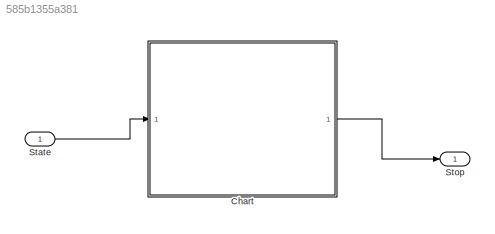
MODEL slx_585b1355a381
KIND model
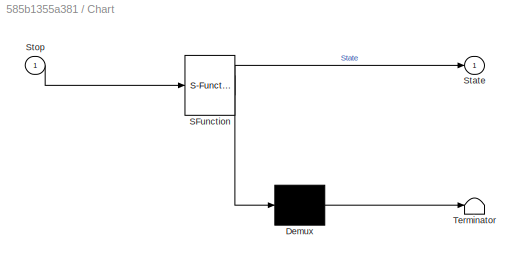
BLOCK [SubSystem] Chart
  ErrorFcn = Stateflow.Translate.translate
  FunctionWithSeparateData = off
  MaskHideContents = off
  MinAlgLoopOccurrences = off
  Opaque = off
  PermitHierarchicalResolution = ExplicitOnly
  Ports = [1, 1]
  PropExecContextOutsideSubsystem = off
  RTWSystemCode = Auto
  RequestExecContextInheritance = off
  SFBlockType = Chart
  TreatAsAtomicUnit = on
BLOCK [Demux] Chart/ Demux 
  Outputs = 1
  Ports = [1, 1]
BLOCK [S-Function] Chart/ SFunction 
  EnableBusSupport = on
  FunctionName = sf_sfun
  PortCounts = [1 2]
  Ports = [1, 2]
  Tag = Stateflow S-Function StateMachine_MR 1
BLOCK [Terminator] Chart/ Terminator 
BLOCK [Outport] Chart/State
  IconDisplay = Port number
BLOCK [Inport] Chart/Stop
  IconDisplay = Port number
BLOCK [Inport] State
  IconDisplay = Port number
BLOCK [Outport] Stop
  IconDisplay = Port number
LINE Chart:1 -> Stop:1
LINE State:1 -> Chart:1
